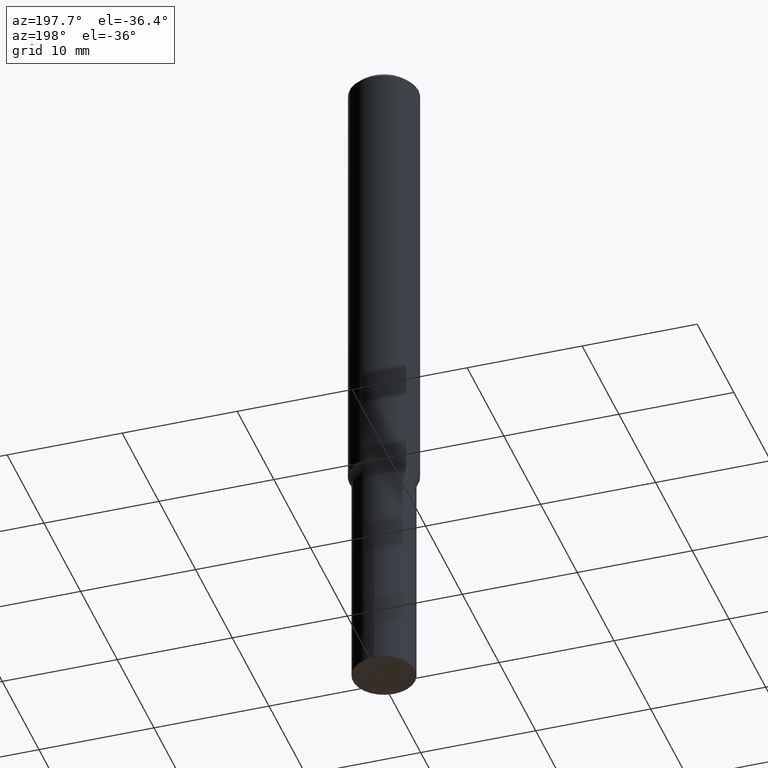
[diagram: clean part render]
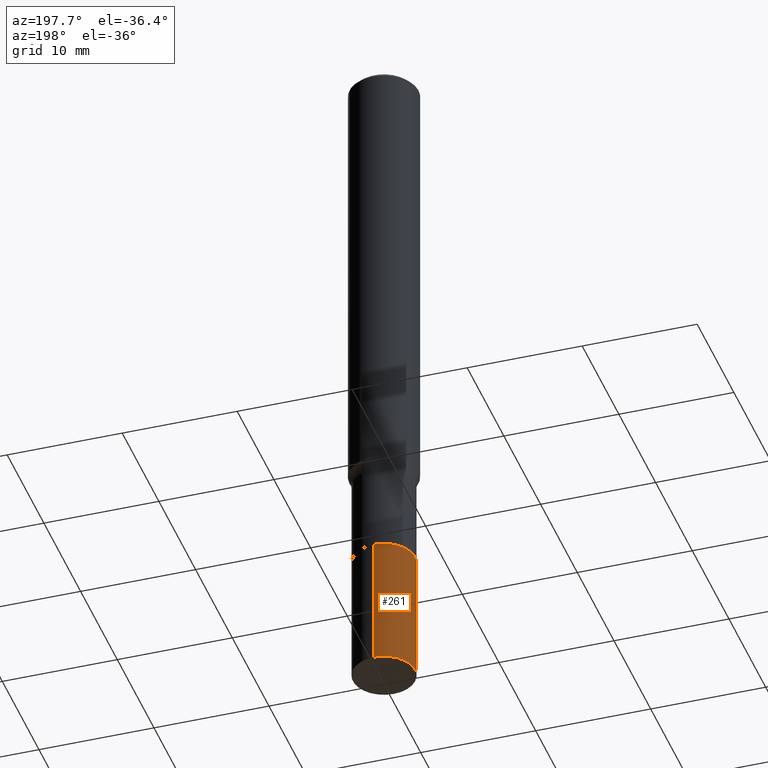
[diagram: same view with one face highlighted and labeled with its STEP entity id]
A machine part, auxiliary view. The second image highlights one B-rep face of the part: STEP entity #261.
In plain terms, the highlighted cylindrical surface (edge-blend (fillet) strip) has radius 2.7 mm, axis along (-0, 0, 1).
Its self-contained STEP definition (entity closure, byte-faithful):
#9 = CARTESIAN_POINT ( 'NONE',  ( 4.659107169543922763E-29, -6.651970246763962256E-15, -1.905200000000000227 ) ) ;
#35 = CARTESIAN_POINT ( 'NONE',  ( -7.422889326380034973E-16, -0.1063000000000066669, -1.905200000000000005 ) ) ;
#56 = VERTEX_POINT ( 'NONE', #439 ) ;
#75 = AXIS2_PLACEMENT_3D ( 'NONE', #279, #244, #322 ) ;
#86 = ORIENTED_EDGE ( 'NONE', *, *, #188, .F. ) ;
#90 = VECTOR ( 'NONE', #147, 39.37007874015748143 ) ;
#93 = DIRECTION ( 'NONE',  ( -2.480044218410043909E-29, 3.441967380626826386E-15, 1.000000000000000000 ) ) ;
#117 = EDGE_CURVE ( 'NONE', #152, #328, #370, .T. ) ;
#118 = CARTESIAN_POINT ( 'NONE',  ( 7.553069281130443214E-16, 0.1062999999999933443, -1.905200000000000449 ) ) ;
#132 = EDGE_CURVE ( 'NONE', #275, #328, #297, .T. ) ;
#134 = ORIENTED_EDGE ( 'NONE', *, *, #132, .F. ) ;
#147 = DIRECTION ( 'NONE',  ( -2.480044218410043909E-29, 3.441967380626826386E-15, 1.000000000000000000 ) ) ;
#150 = VECTOR ( 'NONE', #181, 39.37007874015748143 ) ;
#152 = VERTEX_POINT ( 'NONE', #444 ) ;
#155 = DIRECTION ( 'NONE',  ( -2.480044218410043909E-29, 3.441967380626826386E-15, 1.000000000000000000 ) ) ;
#181 = DIRECTION ( 'NONE',  ( -2.480044218410043909E-29, 3.441967380626826386E-15, 1.000000000000000000 ) ) ;
#188 = EDGE_CURVE ( 'NONE', #56, #275, #301, .T. ) ;
#201 = DIRECTION ( 'NONE',  ( -6.982962677686265922E-15, -1.000000000000000000, 2.569941668545873170E-15 ) ) ;
#207 = EDGE_LOOP ( 'NONE', ( #86, #288, #300, #134 ) ) ;
#230 = AXIS2_PLACEMENT_3D ( 'NONE', #418, #93, #201 ) ;
#232 = FACE_OUTER_BOUND ( 'NONE', #207, .T. ) ;
#244 = DIRECTION ( 'NONE',  ( -2.480044218410043909E-29, 3.441967380626826386E-15, 1.000000000000000000 ) ) ;
#252 = CARTESIAN_POINT ( 'NONE',  ( 7.553069281130329815E-16, 0.1062999999999933443, -1.905200000000000449 ) ) ;
#261 = ADVANCED_FACE ( 'NONE', ( #232 ), #272, .T. ) ;
#266 = DIRECTION ( 'NONE',  ( -6.982962677686265922E-15, -1.000000000000000000, 2.569941668545873170E-15 ) ) ;
#269 = CARTESIAN_POINT ( 'NONE',  ( -7.422889326380034973E-16, -0.1063000000000066669, -1.905200000000000005 ) ) ;
#272 = CYLINDRICAL_SURFACE ( 'NONE', #230, 0.1063000000000000056 ) ;
#275 = VERTEX_POINT ( 'NONE', #118 ) ;
#279 = CARTESIAN_POINT ( 'NONE',  ( 5.792487377357313463E-29, -8.224949339710422363E-15, -2.362200000000000522 ) ) ;
#288 = ORIENTED_EDGE ( 'NONE', *, *, #402, .T. ) ;
#297 = CIRCLE ( 'NONE', #346, 0.1063000000000000056 ) ;
#300 = ORIENTED_EDGE ( 'NONE', *, *, #117, .T. ) ;
#301 = LINE ( 'NONE', #252, #90 ) ;
#322 = DIRECTION ( 'NONE',  ( -6.982962677686265922E-15, -1.000000000000000000, 2.569941668545873564E-15 ) ) ;
#328 = VERTEX_POINT ( 'NONE', #269 ) ;
#346 = AXIS2_PLACEMENT_3D ( 'NONE', #9, #155, #266 ) ;
#370 = LINE ( 'NONE', #35, #150 ) ;
#402 = EDGE_CURVE ( 'NONE', #56, #152, #460, .T. ) ;
#418 = CARTESIAN_POINT ( 'NONE',  ( 4.659107169543922763E-29, -6.651970246763962256E-15, -1.905200000000000227 ) ) ;
#439 = CARTESIAN_POINT ( 'NONE',  ( 7.553069281130386022E-16, 0.1062999999999917622, -2.362200000000000966 ) ) ;
#444 = CARTESIAN_POINT ( 'NONE',  ( -7.422889326379921574E-16, -0.1063000000000082212, -2.362200000000000077 ) ) ;
#460 = CIRCLE ( 'NONE', #75, 0.1062999999999999917 ) ;